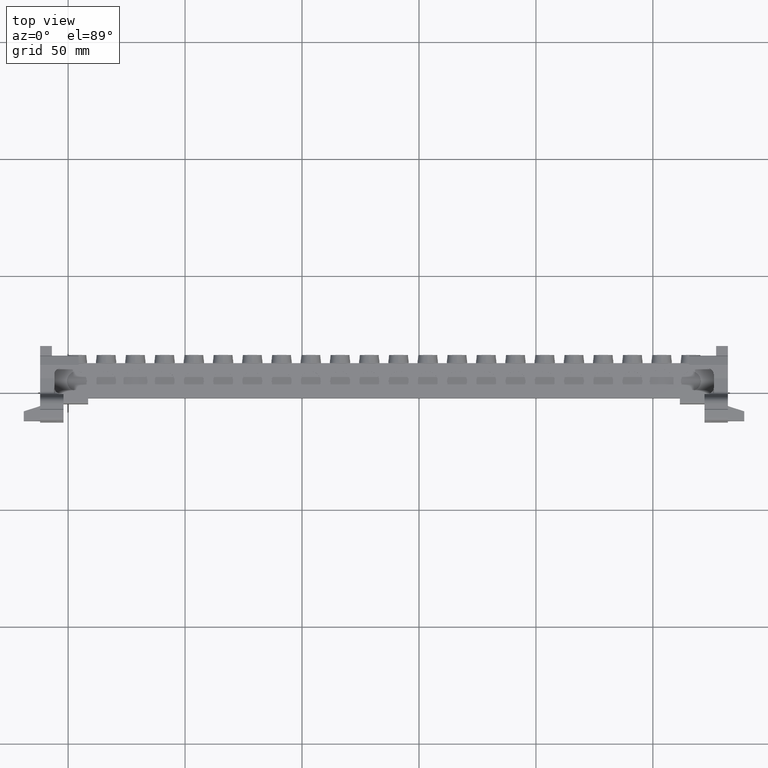
[diagram: clean part render]
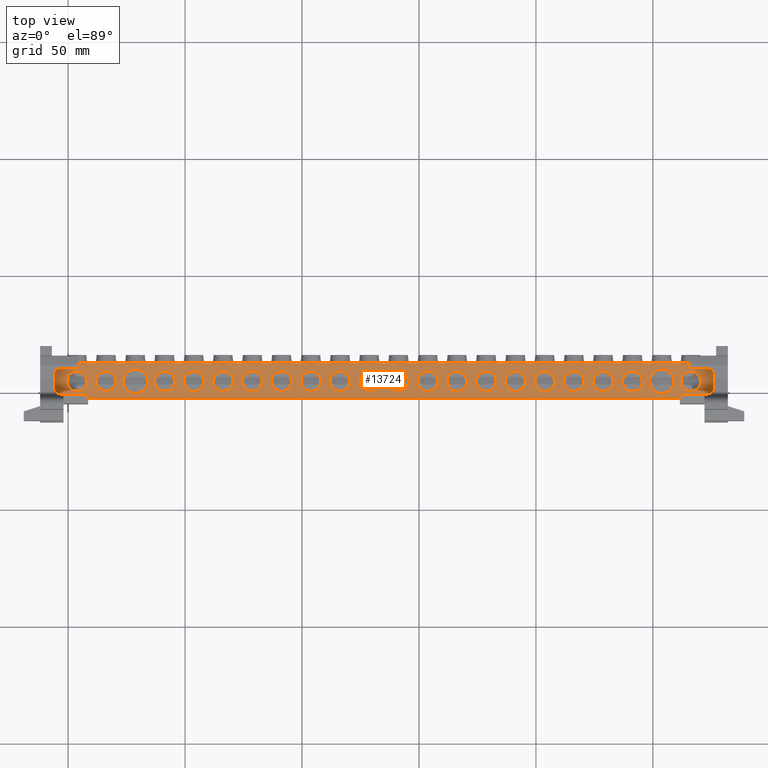
[diagram: same view with one face highlighted and labeled with its STEP entity id]
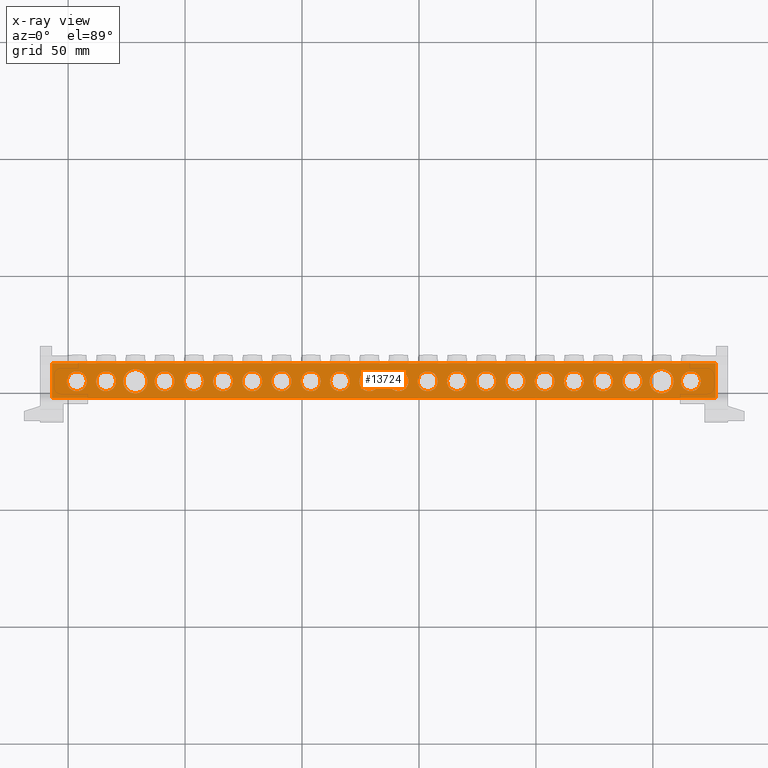
[diagram: x-ray of the same camera — body ghosted, the highlighted face saturated]
A machine part, top view. The second image highlights one B-rep face of the part: STEP entity #13724.
The next image is the same camera in x-ray: the body ghosted, the highlighted face saturated — about 0% of this face is hidden behind the body in this view.
In plain terms, the highlighted planar face has unit normal (0, 0, -1).
Its self-contained STEP definition (entity closure, byte-faithful):
#1021 = DIRECTION ( 'NONE',  ( 1.000000000000000000, 0.0000000000000000000, 0.0000000000000000000 ) ) ;
#1024 = CARTESIAN_POINT ( 'NONE',  ( 141.2473023041756900, 54.61882648292871800, 43.07764998369332000 ) ) ;
#1029 = DIRECTION ( 'NONE',  ( 0.0000000000000000000, 0.0000000000000000000, 1.000000000000000000 ) ) ;
#1037 = CARTESIAN_POINT ( 'NONE',  ( 153.7473023041757200, 54.61882648292871800, 43.07764998369332000 ) ) ;
#1051 = DIRECTION ( 'NONE',  ( 1.000000000000000000, 0.0000000000000000000, 0.0000000000000000000 ) ) ;
#1053 = DIRECTION ( 'NONE',  ( 0.0000000000000000000, 0.0000000000000000000, 1.000000000000000000 ) ) ;
#1062 = DIRECTION ( 'NONE',  ( 0.0000000000000000000, 0.0000000000000000000, 1.000000000000000000 ) ) ;
#1067 = DIRECTION ( 'NONE',  ( 0.0000000000000000000, 0.0000000000000000000, 1.000000000000000000 ) ) ;
#1069 = DIRECTION ( 'NONE',  ( 1.000000000000000000, 0.0000000000000000000, 0.0000000000000000000 ) ) ;
#1084 = DIRECTION ( 'NONE',  ( 1.000000000000000000, 0.0000000000000000000, 0.0000000000000000000 ) ) ;
#1092 = CARTESIAN_POINT ( 'NONE',  ( 41.24730230417573300, 54.61882648292871800, 43.07764998369332000 ) ) ;
#1093 = CARTESIAN_POINT ( 'NONE',  ( 166.2473023041757200, 54.61882648292871800, 43.07764998369332000 ) ) ;
#1099 = CARTESIAN_POINT ( 'NONE',  ( 216.2473023041757200, 54.61882648292871800, 43.07764998369332000 ) ) ;
#1102 = DIRECTION ( 'NONE',  ( 0.0000000000000000000, 0.0000000000000000000, 1.000000000000000000 ) ) ;
#1109 = CARTESIAN_POINT ( 'NONE',  ( 178.7473023041757500, 54.61882648292871800, 43.07764998369332000 ) ) ;
#1114 = DIRECTION ( 'NONE',  ( 0.0000000000000000000, 0.0000000000000000000, 1.000000000000000000 ) ) ;
#1115 = DIRECTION ( 'NONE',  ( 1.000000000000000000, 0.0000000000000000000, 0.0000000000000000000 ) ) ;
#1120 = CARTESIAN_POINT ( 'NONE',  ( -21.25269769582426700, 54.61882648292871800, 43.07764998369332000 ) ) ;
#1121 = DIRECTION ( 'NONE',  ( 0.0000000000000000000, 0.0000000000000000000, 1.000000000000000000 ) ) ;
#1125 = DIRECTION ( 'NONE',  ( 1.000000000000000000, 0.0000000000000000000, 0.0000000000000000000 ) ) ;
#1127 = DIRECTION ( 'NONE',  ( 0.0000000000000000000, 0.0000000000000000000, 1.000000000000000000 ) ) ;
#1135 = DIRECTION ( 'NONE',  ( 1.000000000000000000, 0.0000000000000000000, 0.0000000000000000000 ) ) ;
#1136 = DIRECTION ( 'NONE',  ( 1.000000000000000000, 0.0000000000000000000, 0.0000000000000000000 ) ) ;
#1140 = CARTESIAN_POINT ( 'NONE',  ( 78.74730230417573300, 54.61882648292871800, 43.07764998369332000 ) ) ;
#1196 = EDGE_CURVE ( 'NONE', #9308, #8395, #24999, .T. ) ;
#1217 = EDGE_CURVE ( 'NONE', #8267, #8390, #29342, .T. ) ;
#1225 = DIRECTION ( 'NONE',  ( 0.0000000000000000000, 0.0000000000000000000, 1.000000000000000000 ) ) ;
#1233 = EDGE_CURVE ( 'NONE', #8358, #8338, #21114, .T. ) ;
#1235 = CARTESIAN_POINT ( 'NONE',  ( 3.747302304175727200, 54.61882648292871800, 43.07764998369332000 ) ) ;
#1262 = DIRECTION ( 'NONE',  ( 1.000000000000000000, 0.0000000000000000000, 0.0000000000000000000 ) ) ;
#1272 = DIRECTION ( 'NONE',  ( 0.0000000000000000000, 0.0000000000000000000, 1.000000000000000000 ) ) ;
#1298 = CARTESIAN_POINT ( 'NONE',  ( -46.25269769582426000, 54.61882648292871800, 43.07764998369332000 ) ) ;
#1302 = DIRECTION ( 'NONE',  ( 1.000000000000000000, 0.0000000000000000000, 0.0000000000000000000 ) ) ;
#1320 = CARTESIAN_POINT ( 'NONE',  ( 103.7473023041757500, 54.61882648292871800, 43.07764998369332000 ) ) ;
#1326 = DIRECTION ( 'NONE',  ( 1.000000000000000000, 0.0000000000000000000, 0.0000000000000000000 ) ) ;
#1335 = DIRECTION ( 'NONE',  ( 0.0000000000000000000, 0.0000000000000000000, 1.000000000000000000 ) ) ;
#1371 = CARTESIAN_POINT ( 'NONE',  ( 203.7473023041756900, 54.61882648292871800, 43.07764998369332000 ) ) ;
#1375 = DIRECTION ( 'NONE',  ( 0.0000000000000000000, 0.0000000000000000000, 1.000000000000000000 ) ) ;
#1382 = DIRECTION ( 'NONE',  ( 1.000000000000000000, 0.0000000000000000000, 0.0000000000000000000 ) ) ;
#2567 = DIRECTION ( 'NONE',  ( 1.000000000000000000, 0.0000000000000000000, 0.0000000000000000000 ) ) ;
#2594 = DIRECTION ( 'NONE',  ( 0.0000000000000000000, 0.0000000000000000000, 1.000000000000000000 ) ) ;
#2595 = DIRECTION ( 'NONE',  ( 0.0000000000000000000, 0.0000000000000000000, 1.000000000000000000 ) ) ;
#2596 = CARTESIAN_POINT ( 'NONE',  ( 91.24730230417574700, 54.61882648292871800, 43.07764998369332000 ) ) ;
#2597 = DIRECTION ( 'NONE',  ( 1.000000000000000000, 0.0000000000000000000, 0.0000000000000000000 ) ) ;
#2600 = CARTESIAN_POINT ( 'NONE',  ( 28.74730230417573700, 54.61882648292871800, 43.07764998369332000 ) ) ;
#2616 = DIRECTION ( 'NONE',  ( 0.0000000000000000000, 0.0000000000000000000, 1.000000000000000000 ) ) ;
#2621 = DIRECTION ( 'NONE',  ( 1.000000000000000000, 0.0000000000000000000, 0.0000000000000000000 ) ) ;
#2629 = CARTESIAN_POINT ( 'NONE',  ( 16.24730230417572600, 54.61882648292871800, 43.07764998369332000 ) ) ;
#2631 = CARTESIAN_POINT ( 'NONE',  ( 53.74730230417573300, 54.61882648292871800, 43.07764998369332000 ) ) ;
#2638 = DIRECTION ( 'NONE',  ( 0.0000000000000000000, 0.0000000000000000000, 1.000000000000000000 ) ) ;
#2645 = DIRECTION ( 'NONE',  ( 1.000000000000000000, 0.0000000000000000000, 0.0000000000000000000 ) ) ;
#2650 = CARTESIAN_POINT ( 'NONE',  ( 191.2473023041756900, 54.61882648292871800, 43.07764998369332000 ) ) ;
#2656 = DIRECTION ( 'NONE',  ( 1.000000000000000000, 0.0000000000000000000, 0.0000000000000000000 ) ) ;
#2666 = DIRECTION ( 'NONE',  ( 0.0000000000000000000, 0.0000000000000000000, 1.000000000000000000 ) ) ;
#2667 = DIRECTION ( 'NONE',  ( 1.000000000000000000, 0.0000000000000000000, 0.0000000000000000000 ) ) ;
#2668 = DIRECTION ( 'NONE',  ( 0.0000000000000000000, 0.0000000000000000000, 1.000000000000000000 ) ) ;
#2669 = DIRECTION ( 'NONE',  ( 1.000000000000000000, 0.0000000000000000000, 0.0000000000000000000 ) ) ;
#2670 = CARTESIAN_POINT ( 'NONE',  ( 116.2473023041757300, 54.61882648292871800, 43.07764998369332000 ) ) ;
#2671 = CARTESIAN_POINT ( 'NONE',  ( 128.7473023041757200, 54.61882648292871800, 43.07764998369332000 ) ) ;
#2672 = DIRECTION ( 'NONE',  ( 0.0000000000000000000, 0.0000000000000000000, 1.000000000000000000 ) ) ;
#2676 = CARTESIAN_POINT ( 'NONE',  ( 66.24730230417571900, 54.61882648292871800, 43.07764998369332000 ) ) ;
#2677 = DIRECTION ( 'NONE',  ( 1.000000000000000000, 0.0000000000000000000, 0.0000000000000000000 ) ) ;
#2679 = DIRECTION ( 'NONE',  ( 0.0000000000000000000, 0.0000000000000000000, 1.000000000000000000 ) ) ;
#2757 = AXIS2_PLACEMENT_3D ( 'NONE', #2600, #2594, #2567 ) ;
#2772 = CIRCLE ( 'NONE', #2757, 4.250000000000003600 ) ;
#2780 = CIRCLE ( 'NONE', #2793, 4.250000000000003600 ) ;
#2793 = AXIS2_PLACEMENT_3D ( 'NONE', #2596, #2595, #2597 ) ;
#2798 = CIRCLE ( 'NONE', #2803, 4.250000000000003600 ) ;
#2803 = AXIS2_PLACEMENT_3D ( 'NONE', #2631, #2616, #2645 ) ;
#2815 = AXIS2_PLACEMENT_3D ( 'NONE', #2676, #2666, #2656 ) ;
#2828 = AXIS2_PLACEMENT_3D ( 'NONE', #2670, #2672, #2667 ) ;
#2831 = CIRCLE ( 'NONE', #2833, 4.250000000000003600 ) ;
#2832 = CIRCLE ( 'NONE', #2914, 4.250000000000003600 ) ;
#2833 = AXIS2_PLACEMENT_3D ( 'NONE', #1093, #1062, #1084 ) ;
#2837 = CIRCLE ( 'NONE', #2838, 4.250000000000003600 ) ;
#2838 = AXIS2_PLACEMENT_3D ( 'NONE', #2629, #2638, #2621 ) ;
#2842 = AXIS2_PLACEMENT_3D ( 'NONE', #1037, #1029, #1021 ) ;
#2846 = CIRCLE ( 'NONE', #2858, 4.250000000000003600 ) ;
#2847 = CIRCLE ( 'NONE', #2868, 4.250000000000003600 ) ;
#2849 = CIRCLE ( 'NONE', #2815, 4.249999999999990200 ) ;
#2850 = CIRCLE ( 'NONE', #2861, 4.250000000000003600 ) ;
#2856 = CIRCLE ( 'NONE', #2842, 4.250000000000003600 ) ;
#2858 = AXIS2_PLACEMENT_3D ( 'NONE', #1024, #1053, #1051 ) ;
#2861 = AXIS2_PLACEMENT_3D ( 'NONE', #2650, #2668, #2669 ) ;
#2865 = CIRCLE ( 'NONE', #2828, 4.250000000000003600 ) ;
#2868 = AXIS2_PLACEMENT_3D ( 'NONE', #2671, #2679, #2677 ) ;
#2877 = CIRCLE ( 'NONE', #2907, 4.250000000000003600 ) ;
#2886 = CIRCLE ( 'NONE', #2897, 4.250000000000003600 ) ;
#2891 = AXIS2_PLACEMENT_3D ( 'NONE', #1109, #1114, #1136 ) ;
#2896 = AXIS2_PLACEMENT_3D ( 'NONE', #1120, #1121, #1115 ) ;
#2897 = AXIS2_PLACEMENT_3D ( 'NONE', #1140, #1102, #1135 ) ;
#2902 = CIRCLE ( 'NONE', #2891, 4.250000000000003600 ) ;
#2907 = AXIS2_PLACEMENT_3D ( 'NONE', #1099, #1127, #1125 ) ;
#2914 = AXIS2_PLACEMENT_3D ( 'NONE', #1092, #1067, #1069 ) ;
#2935 = CIRCLE ( 'NONE', #2896, 5.150000000000002100 ) ;
#2937 = AXIS2_PLACEMENT_3D ( 'NONE', #1320, #1375, #1382 ) ;
#2940 = AXIS2_PLACEMENT_3D ( 'NONE', #1235, #1225, #1302 ) ;
#2945 = AXIS2_PLACEMENT_3D ( 'NONE', #1298, #1272, #1262 ) ;
#2946 = CIRCLE ( 'NONE', #2937, 4.250000000000003600 ) ;
#2957 = CIRCLE ( 'NONE', #2940, 4.250000000000005300 ) ;
#2959 = AXIS2_PLACEMENT_3D ( 'NONE', #1371, #1335, #1326 ) ;
#2962 = CIRCLE ( 'NONE', #2945, 4.249999999999996400 ) ;
#2965 = CIRCLE ( 'NONE', #2959, 5.150000000000015500 ) ;
#4004 = FACE_BOUND ( 'NONE', #19442, .T. ) ;
#4007 = FACE_BOUND ( 'NONE', #27348, .T. ) ;
#4009 = FACE_BOUND ( 'NONE', #29411, .T. ) ;
#4011 = FACE_BOUND ( 'NONE', #27345, .T. ) ;
#4012 = FACE_BOUND ( 'NONE', #27389, .T. ) ;
#4013 = FACE_BOUND ( 'NONE', #27373, .T. ) ;
#4015 = FACE_BOUND ( 'NONE', #24892, .T. ) ;
#4017 = FACE_BOUND ( 'NONE', #24784, .T. ) ;
#4018 = FACE_BOUND ( 'NONE', #24930, .T. ) ;
#4019 = FACE_BOUND ( 'NONE', #29408, .T. ) ;
#4020 = FACE_BOUND ( 'NONE', #24877, .T. ) ;
#4032 = FACE_BOUND ( 'NONE', #27347, .T. ) ;
#4033 = FACE_BOUND ( 'NONE', #27374, .T. ) ;
#4035 = FACE_BOUND ( 'NONE', #27343, .T. ) ;
#4040 = FACE_BOUND ( 'NONE', #27387, .T. ) ;
#4041 = FACE_BOUND ( 'NONE', #29412, .T. ) ;
#4042 = FACE_BOUND ( 'NONE', #27371, .T. ) ;
#4044 = FACE_BOUND ( 'NONE', #27386, .T. ) ;
#4045 = FACE_BOUND ( 'NONE', #24916, .T. ) ;
#4050 = FACE_BOUND ( 'NONE', #27390, .T. ) ;
#4052 = FACE_BOUND ( 'NONE', #29410, .T. ) ;
#4076 = FACE_BOUND ( 'NONE', #24931, .T. ) ;
#4080 = CARTESIAN_POINT ( 'NONE',  ( -56.95269769582426300, 62.41882648292872200, 43.07764998369332000 ) ) ;
#4081 = DIRECTION ( 'NONE',  ( 0.0000000000000000000, 0.0000000000000000000, -1.000000000000000000 ) ) ;
#4094 = PLANE ( 'NONE',  #27219 ) ;
#4096 = DIRECTION ( 'NONE',  ( -1.000000000000000000, 0.0000000000000000000, -0.0000000000000000000 ) ) ;
#4110 = FACE_OUTER_BOUND ( 'NONE', #24913, .T. ) ;
#6760 = EDGE_CURVE ( 'NONE', #9445, #9401, #2772, .T. ) ;
#6764 = EDGE_CURVE ( 'NONE', #8179, #8255, #2780, .T. ) ;
#6773 = EDGE_CURVE ( 'NONE', #9390, #9414, #2798, .T. ) ;
#6783 = EDGE_CURVE ( 'NONE', #8233, #8246, #2837, .T. ) ;
#6788 = EDGE_CURVE ( 'NONE', #8197, #9403, #2847, .T. ) ;
#6789 = EDGE_CURVE ( 'NONE', #9392, #8199, #2865, .T. ) ;
#6790 = EDGE_CURVE ( 'NONE', #9232, #9420, #2850, .T. ) ;
#6795 = EDGE_CURVE ( 'NONE', #9436, #8214, #2849, .T. ) ;
#6798 = EDGE_CURVE ( 'NONE', #8161, #8212, #2846, .T. ) ;
#6807 = EDGE_CURVE ( 'NONE', #8185, #8253, #2856, .T. ) ;
#6816 = EDGE_CURVE ( 'NONE', #8305, #9379, #2831, .T. ) ;
#6817 = EDGE_CURVE ( 'NONE', #9359, #8219, #2832, .T. ) ;
#6826 = EDGE_CURVE ( 'NONE', #8217, #9370, #2902, .T. ) ;
#6828 = EDGE_CURVE ( 'NONE', #8227, #8263, #2886, .T. ) ;
#6830 = EDGE_CURVE ( 'NONE', #8284, #8331, #2935, .T. ) ;
#6831 = EDGE_CURVE ( 'NONE', #8325, #8422, #2877, .T. ) ;
#6860 = EDGE_CURVE ( 'NONE', #8368, #8295, #2962, .T. ) ;
#6862 = EDGE_CURVE ( 'NONE', #8361, #8307, #2957, .T. ) ;
#6866 = EDGE_CURVE ( 'NONE', #8203, #8261, #2946, .T. ) ;
#6875 = EDGE_CURVE ( 'NONE', #8282, #8335, #2965, .T. ) ;
#7010 = EDGE_CURVE ( 'NONE', #8263, #8227, #17188, .T. ) ;
#7012 = EDGE_CURVE ( 'NONE', #9379, #8305, #17222, .T. ) ;
#7013 = EDGE_CURVE ( 'NONE', #8199, #9392, #17235, .T. ) ;
#7022 = EDGE_CURVE ( 'NONE', #9403, #8197, #17190, .T. ) ;
#7026 = EDGE_CURVE ( 'NONE', #8331, #8284, #17283, .T. ) ;
#7031 = EDGE_CURVE ( 'NONE', #9420, #9232, #17252, .T. ) ;
#7044 = EDGE_CURVE ( 'NONE', #16409, #9308, #11606, .T. ) ;
#7053 = EDGE_CURVE ( 'NONE', #9370, #8217, #17303, .T. ) ;
#7054 = EDGE_CURVE ( 'NONE', #8338, #8358, #17294, .T. ) ;
#7061 = EDGE_CURVE ( 'NONE', #8214, #9436, #17253, .T. ) ;
#7064 = EDGE_CURVE ( 'NONE', #16356, #16433, #11767, .T. ) ;
#7073 = EDGE_CURVE ( 'NONE', #8261, #8203, #17337, .T. ) ;
#7077 = EDGE_CURVE ( 'NONE', #8219, #9359, #17364, .T. ) ;
#7079 = EDGE_CURVE ( 'NONE', #9401, #9445, #17354, .T. ) ;
#7080 = EDGE_CURVE ( 'NONE', #8410, #16409, #11925, .T. ) ;
#7090 = EDGE_CURVE ( 'NONE', #8212, #8161, #17334, .T. ) ;
#7104 = EDGE_CURVE ( 'NONE', #8307, #8361, #17344, .T. ) ;
#7111 = EDGE_CURVE ( 'NONE', #8390, #8267, #17351, .T. ) ;
#7115 = EDGE_CURVE ( 'NONE', #8295, #8368, #17413, .T. ) ;
#7116 = EDGE_CURVE ( 'NONE', #9414, #9390, #17379, .T. ) ;
#7119 = EDGE_CURVE ( 'NONE', #8253, #8185, #17382, .T. ) ;
#7121 = EDGE_CURVE ( 'NONE', #8255, #8179, #17423, .T. ) ;
#7125 = EDGE_CURVE ( 'NONE', #8335, #8282, #17407, .T. ) ;
#7131 = EDGE_CURVE ( 'NONE', #16362, #8395, #10815, .T. ) ;
#7132 = EDGE_CURVE ( 'NONE', #8246, #8233, #17415, .T. ) ;
#7133 = EDGE_CURVE ( 'NONE', #16433, #16439, #10821, .T. ) ;
#7134 = EDGE_CURVE ( 'NONE', #8422, #8325, #17434, .T. ) ;
#7447 = EDGE_CURVE ( 'NONE', #16439, #8410, #26017, .T. ) ;
#7460 = EDGE_CURVE ( 'NONE', #16362, #16356, #26074, .T. ) ;
#8161 = VERTEX_POINT ( 'NONE', #18374 ) ;
#8179 = VERTEX_POINT ( 'NONE', #18402 ) ;
#8185 = VERTEX_POINT ( 'NONE', #18412 ) ;
#8197 = VERTEX_POINT ( 'NONE', #18421 ) ;
#8199 = VERTEX_POINT ( 'NONE', #18401 ) ;
#8203 = VERTEX_POINT ( 'NONE', #18430 ) ;
#8212 = VERTEX_POINT ( 'NONE', #18441 ) ;
#8214 = VERTEX_POINT ( 'NONE', #18428 ) ;
#8217 = VERTEX_POINT ( 'NONE', #18399 ) ;
#8219 = VERTEX_POINT ( 'NONE', #18413 ) ;
#8227 = VERTEX_POINT ( 'NONE', #18415 ) ;
#8233 = VERTEX_POINT ( 'NONE', #18436 ) ;
#8246 = VERTEX_POINT ( 'NONE', #18432 ) ;
#8253 = VERTEX_POINT ( 'NONE', #18406 ) ;
#8255 = VERTEX_POINT ( 'NONE', #18423 ) ;
#8261 = VERTEX_POINT ( 'NONE', #18427 ) ;
#8263 = VERTEX_POINT ( 'NONE', #18418 ) ;
#8267 = VERTEX_POINT ( 'NONE', #18417 ) ;
#8282 = VERTEX_POINT ( 'NONE', #18398 ) ;
#8284 = VERTEX_POINT ( 'NONE', #18400 ) ;
#8295 = VERTEX_POINT ( 'NONE', #18389 ) ;
#8305 = VERTEX_POINT ( 'NONE', #18437 ) ;
#8307 = VERTEX_POINT ( 'NONE', #18409 ) ;
#8325 = VERTEX_POINT ( 'NONE', #18391 ) ;
#8331 = VERTEX_POINT ( 'NONE', #18407 ) ;
#8335 = VERTEX_POINT ( 'NONE', #18439 ) ;
#8338 = VERTEX_POINT ( 'NONE', #18411 ) ;
#8358 = VERTEX_POINT ( 'NONE', #18385 ) ;
#8361 = VERTEX_POINT ( 'NONE', #18483 ) ;
#8368 = VERTEX_POINT ( 'NONE', #18464 ) ;
#8390 = VERTEX_POINT ( 'NONE', #18453 ) ;
#8395 = VERTEX_POINT ( 'NONE', #18468 ) ;
#8410 = VERTEX_POINT ( 'NONE', #18510 ) ;
#8422 = VERTEX_POINT ( 'NONE', #18494 ) ;
#9232 = VERTEX_POINT ( 'NONE', #18643 ) ;
#9308 = VERTEX_POINT ( 'NONE', #18650 ) ;
#9359 = VERTEX_POINT ( 'NONE', #18731 ) ;
#9370 = VERTEX_POINT ( 'NONE', #18750 ) ;
#9379 = VERTEX_POINT ( 'NONE', #18751 ) ;
#9390 = VERTEX_POINT ( 'NONE', #18718 ) ;
#9392 = VERTEX_POINT ( 'NONE', #18738 ) ;
#9401 = VERTEX_POINT ( 'NONE', #18797 ) ;
#9403 = VERTEX_POINT ( 'NONE', #18788 ) ;
#9414 = VERTEX_POINT ( 'NONE', #18755 ) ;
#9420 = VERTEX_POINT ( 'NONE', #18787 ) ;
#9436 = VERTEX_POINT ( 'NONE', #18772 ) ;
#9445 = VERTEX_POINT ( 'NONE', #18825 ) ;
#9570 = CARTESIAN_POINT ( 'NONE',  ( 226.9473023041757100, 47.41882648292872200, 43.07764998369332000 ) ) ;
#9612 = CARTESIAN_POINT ( 'NONE',  ( 226.9473023041757100, 62.41882648292872200, 43.07764998369332000 ) ) ;
#9647 = CARTESIAN_POINT ( 'NONE',  ( -56.95269769582426300, 47.41882648292872200, 43.07764998369332000 ) ) ;
#9680 = CARTESIAN_POINT ( 'NONE',  ( -56.95269769582426300, 62.41882648292872200, 43.07764998369332000 ) ) ;
#9719 = CARTESIAN_POINT ( 'NONE',  ( -56.95269769582426300, 61.91882648293060500, 43.07764998369332000 ) ) ;
#10726 = DIRECTION ( 'NONE',  ( 0.0000000000000000000, 0.0000000000000000000, 1.000000000000000000 ) ) ;
#10732 = DIRECTION ( 'NONE',  ( 1.000000000000000000, 0.0000000000000000000, 0.0000000000000000000 ) ) ;
#10740 = CARTESIAN_POINT ( 'NONE',  ( 3.747302304175727200, 54.61882648292871800, 43.07764998369332000 ) ) ;
#10765 = DIRECTION ( 'NONE',  ( 0.0000000000000000000, 0.0000000000000000000, 1.000000000000000000 ) ) ;
#10769 = DIRECTION ( 'NONE',  ( 0.0000000000000000000, 0.0000000000000000000, 1.000000000000000000 ) ) ;
#10770 = DIRECTION ( 'NONE',  ( 1.000000000000000000, 0.0000000000000000000, 0.0000000000000000000 ) ) ;
#10775 = DIRECTION ( 'NONE',  ( 1.000000000000000000, 0.0000000000000000000, 0.0000000000000000000 ) ) ;
#10779 = DIRECTION ( 'NONE',  ( 1.000000000000000000, 0.0000000000000000000, 0.0000000000000000000 ) ) ;
#10781 = DIRECTION ( 'NONE',  ( 0.0000000000000000000, 0.0000000000000000000, 1.000000000000000000 ) ) ;
#10789 = DIRECTION ( 'NONE',  ( 1.000000000000000000, 0.0000000000000000000, 0.0000000000000000000 ) ) ;
#10790 = DIRECTION ( 'NONE',  ( 0.0000000000000000000, 0.0000000000000000000, 1.000000000000000000 ) ) ;
#10792 = CARTESIAN_POINT ( 'NONE',  ( 53.74730230417573300, 54.61882648292871800, 43.07764998369332000 ) ) ;
#10793 = DIRECTION ( 'NONE',  ( 1.000000000000000000, 0.0000000000000000000, 0.0000000000000000000 ) ) ;
#10794 = CARTESIAN_POINT ( 'NONE',  ( 153.7473023041757200, 54.61882648292871800, 43.07764998369332000 ) ) ;
#10795 = CARTESIAN_POINT ( 'NONE',  ( 91.24730230417574700, 54.61882648292871800, 43.07764998369332000 ) ) ;
#10800 = CARTESIAN_POINT ( 'NONE',  ( -46.25269769582426000, 54.61882648292871800, 43.07764998369332000 ) ) ;
#10801 = DIRECTION ( 'NONE',  ( 0.0000000000000000000, 0.0000000000000000000, 1.000000000000000000 ) ) ;
#10804 = CARTESIAN_POINT ( 'NONE',  ( -33.75269769582426700, 54.61882648292871800, 43.07764998369332000 ) ) ;
#10809 = DIRECTION ( 'NONE',  ( 1.000000000000000000, 0.0000000000000000000, 0.0000000000000000000 ) ) ;
#10815 = LINE ( 'NONE', #10833, #17411 ) ;
#10819 = DIRECTION ( 'NONE',  ( 0.0000000000000000000, 0.0000000000000000000, 1.000000000000000000 ) ) ;
#10821 = LINE ( 'NONE', #10847, #17396 ) ;
#10822 = DIRECTION ( 'NONE',  ( -0.0000000000000000000, -1.000000000000000000, -0.0000000000000000000 ) ) ;
#10823 = DIRECTION ( 'NONE',  ( 1.000000000000000000, 0.0000000000000000000, 0.0000000000000000000 ) ) ;
#10825 = DIRECTION ( 'NONE',  ( 1.000000000000000000, 0.0000000000000000000, 0.0000000000000000000 ) ) ;
#10828 = CARTESIAN_POINT ( 'NONE',  ( 203.7473023041756900, 54.61882648292871800, 43.07764998369332000 ) ) ;
#10833 = CARTESIAN_POINT ( 'NONE',  ( -56.95269769582424900, 47.41882648292912700, 43.07764998369332000 ) ) ;
#10836 = CARTESIAN_POINT ( 'NONE',  ( 16.24730230417572600, 54.61882648292871800, 43.07764998369332000 ) ) ;
#10837 = DIRECTION ( 'NONE',  ( 0.0000000000000000000, 0.0000000000000000000, 1.000000000000000000 ) ) ;
#10840 = DIRECTION ( 'NONE',  ( 0.0000000000000000000, 0.0000000000000000000, 1.000000000000000000 ) ) ;
#10841 = CARTESIAN_POINT ( 'NONE',  ( 216.2473023041757200, 54.61882648292871800, 43.07764998369332000 ) ) ;
#10846 = DIRECTION ( 'NONE',  ( -1.000000000000000000, -1.017900180445811500E-015, 0.0000000000000000000 ) ) ;
#10847 = CARTESIAN_POINT ( 'NONE',  ( -56.95269769582426300, 47.41882648292872200, 43.07764998369332000 ) ) ;
#11403 = CARTESIAN_POINT ( 'NONE',  ( 78.74730230417573300, 54.61882648292871800, 43.07764998369332000 ) ) ;
#11410 = DIRECTION ( 'NONE',  ( 0.0000000000000000000, 0.0000000000000000000, 1.000000000000000000 ) ) ;
#11439 = DIRECTION ( 'NONE',  ( 1.000000000000000000, 0.0000000000000000000, 0.0000000000000000000 ) ) ;
#11460 = DIRECTION ( 'NONE',  ( 0.0000000000000000000, 0.0000000000000000000, 1.000000000000000000 ) ) ;
#11462 = DIRECTION ( 'NONE',  ( 1.000000000000000000, 0.0000000000000000000, 0.0000000000000000000 ) ) ;
#11470 = CARTESIAN_POINT ( 'NONE',  ( 116.2473023041757300, 54.61882648292871800, 43.07764998369332000 ) ) ;
#11479 = CARTESIAN_POINT ( 'NONE',  ( 128.7473023041757200, 54.61882648292871800, 43.07764998369332000 ) ) ;
#11482 = DIRECTION ( 'NONE',  ( 1.000000000000000000, 0.0000000000000000000, 0.0000000000000000000 ) ) ;
#11488 = DIRECTION ( 'NONE',  ( 0.0000000000000000000, 0.0000000000000000000, 1.000000000000000000 ) ) ;
#11489 = DIRECTION ( 'NONE',  ( 0.0000000000000000000, 0.0000000000000000000, 1.000000000000000000 ) ) ;
#11490 = DIRECTION ( 'NONE',  ( 1.000000000000000000, 0.0000000000000000000, 0.0000000000000000000 ) ) ;
#11492 = CARTESIAN_POINT ( 'NONE',  ( 166.2473023041757200, 54.61882648292871800, 43.07764998369332000 ) ) ;
#11501 = CARTESIAN_POINT ( 'NONE',  ( 191.2473023041756900, 54.61882648292871800, 43.07764998369332000 ) ) ;
#11506 = DIRECTION ( 'NONE',  ( 1.000000000000000000, 0.0000000000000000000, 0.0000000000000000000 ) ) ;
#11524 = DIRECTION ( 'NONE',  ( 0.0000000000000000000, 0.0000000000000000000, 1.000000000000000000 ) ) ;
#11529 = CARTESIAN_POINT ( 'NONE',  ( -21.25269769582426700, 54.61882648292871800, 43.07764998369332000 ) ) ;
#11531 = DIRECTION ( 'NONE',  ( 1.000000000000000000, 0.0000000000000000000, 0.0000000000000000000 ) ) ;
#11544 = DIRECTION ( 'NONE',  ( 0.0000000000000000000, 0.0000000000000000000, 1.000000000000000000 ) ) ;
#11606 = LINE ( 'NONE', #11619, #17290 ) ;
#11619 = CARTESIAN_POINT ( 'NONE',  ( -56.95269769582426300, 47.41882648292872200, 43.07764998369332000 ) ) ;
#11623 = DIRECTION ( 'NONE',  ( 1.000000000000000000, 0.0000000000000000000, 0.0000000000000000000 ) ) ;
#11659 = DIRECTION ( 'NONE',  ( 0.0000000000000000000, 0.0000000000000000000, 1.000000000000000000 ) ) ;
#11692 = CARTESIAN_POINT ( 'NONE',  ( 178.7473023041757500, 54.61882648292871800, 43.07764998369332000 ) ) ;
#11697 = DIRECTION ( 'NONE',  ( 1.000000000000000000, 0.0000000000000000000, 0.0000000000000000000 ) ) ;
#11707 = CARTESIAN_POINT ( 'NONE',  ( -8.752697695824270600, 54.61882648292871800, 43.07764998369332000 ) ) ;
#11710 = DIRECTION ( 'NONE',  ( 0.0000000000000000000, 0.0000000000000000000, 1.000000000000000000 ) ) ;
#11749 = DIRECTION ( 'NONE',  ( 1.000000000000000000, 0.0000000000000000000, 0.0000000000000000000 ) ) ;
#11758 = CARTESIAN_POINT ( 'NONE',  ( 66.24730230417571900, 54.61882648292871800, 43.07764998369332000 ) ) ;
#11767 = LINE ( 'NONE', #11845, #17286 ) ;
#11824 = DIRECTION ( 'NONE',  ( 0.0000000000000000000, 0.0000000000000000000, 1.000000000000000000 ) ) ;
#11836 = DIRECTION ( 'NONE',  ( 1.000000000000000000, 0.0000000000000000000, 0.0000000000000000000 ) ) ;
#11845 = CARTESIAN_POINT ( 'NONE',  ( -56.95269769582426300, 62.41882648292872200, 43.07764998369332000 ) ) ;
#11848 = DIRECTION ( 'NONE',  ( -1.000000000000000000, -0.0000000000000000000, -0.0000000000000000000 ) ) ;
#11863 = DIRECTION ( 'NONE',  ( 0.0000000000000000000, 0.0000000000000000000, 1.000000000000000000 ) ) ;
#11865 = CARTESIAN_POINT ( 'NONE',  ( -56.95269769582397900, 62.41882648292872200, 43.07764998369332000 ) ) ;
#11866 = DIRECTION ( 'NONE',  ( 1.000000000000000000, 0.0000000000000000000, 0.0000000000000000000 ) ) ;
#11868 = DIRECTION ( 'NONE',  ( -7.897574987183420400E-015, -1.000000000000000000, 0.0000000000000000000 ) ) ;
#11886 = CARTESIAN_POINT ( 'NONE',  ( 103.7473023041757500, 54.61882648292871800, 43.07764998369332000 ) ) ;
#11894 = CARTESIAN_POINT ( 'NONE',  ( 28.74730230417573700, 54.61882648292871800, 43.07764998369332000 ) ) ;
#11896 = DIRECTION ( 'NONE',  ( 1.000000000000000000, 0.0000000000000000000, 0.0000000000000000000 ) ) ;
#11898 = DIRECTION ( 'NONE',  ( 1.000000000000000000, 0.0000000000000000000, 0.0000000000000000000 ) ) ;
#11912 = CARTESIAN_POINT ( 'NONE',  ( 41.24730230417573300, 54.61882648292871800, 43.07764998369332000 ) ) ;
#11925 = LINE ( 'NONE', #11865, #17325 ) ;
#11931 = DIRECTION ( 'NONE',  ( 0.0000000000000000000, 0.0000000000000000000, 1.000000000000000000 ) ) ;
#11935 = DIRECTION ( 'NONE',  ( 0.0000000000000000000, 0.0000000000000000000, 1.000000000000000000 ) ) ;
#11949 = DIRECTION ( 'NONE',  ( 0.0000000000000000000, 0.0000000000000000000, 1.000000000000000000 ) ) ;
#11998 = CARTESIAN_POINT ( 'NONE',  ( 141.2473023041756900, 54.61882648292871800, 43.07764998369332000 ) ) ;
#12032 = DIRECTION ( 'NONE',  ( 1.000000000000000000, 0.0000000000000000000, 0.0000000000000000000 ) ) ;
#13422 = VECTOR ( 'NONE', #26057, 1000.000000000000000 ) ;
#13653 = VECTOR ( 'NONE', #26022, 1000.000000000000000 ) ;
#13724 = ADVANCED_FACE ( 'NONE', ( #4032, #4033, #4040, #4019, #4044, #4042, #4035, #4041, #4007, #4052, #4011, #4013, #4004, #4050, #4009, #4012, #4045, #4015, #4017, #4018, #4020, #4076, #4110 ), #4094, .F. ) ;
#16356 = VERTEX_POINT ( 'NONE', #9612 ) ;
#16362 = VERTEX_POINT ( 'NONE', #9570 ) ;
#16409 = VERTEX_POINT ( 'NONE', #9647 ) ;
#16433 = VERTEX_POINT ( 'NONE', #9680 ) ;
#16439 = VERTEX_POINT ( 'NONE', #9719 ) ;
#17188 = CIRCLE ( 'NONE', #17189, 4.250000000000003600 ) ;
#17189 = AXIS2_PLACEMENT_3D ( 'NONE', #11403, #11410, #11439 ) ;
#17190 = CIRCLE ( 'NONE', #17194, 4.250000000000003600 ) ;
#17194 = AXIS2_PLACEMENT_3D ( 'NONE', #11479, #11489, #11490 ) ;
#17204 = AXIS2_PLACEMENT_3D ( 'NONE', #11470, #11488, #11482 ) ;
#17222 = CIRCLE ( 'NONE', #17226, 4.250000000000003600 ) ;
#17226 = AXIS2_PLACEMENT_3D ( 'NONE', #11492, #11460, #11462 ) ;
#17235 = CIRCLE ( 'NONE', #17204, 4.250000000000003600 ) ;
#17252 = CIRCLE ( 'NONE', #17278, 4.250000000000003600 ) ;
#17253 = CIRCLE ( 'NONE', #17267, 4.249999999999990200 ) ;
#17261 = AXIS2_PLACEMENT_3D ( 'NONE', #11692, #11710, #11749 ) ;
#17267 = AXIS2_PLACEMENT_3D ( 'NONE', #11758, #11824, #11836 ) ;
#17271 = AXIS2_PLACEMENT_3D ( 'NONE', #11529, #11524, #11531 ) ;
#17278 = AXIS2_PLACEMENT_3D ( 'NONE', #11501, #11544, #11506 ) ;
#17283 = CIRCLE ( 'NONE', #17271, 5.150000000000002100 ) ;
#17286 = VECTOR ( 'NONE', #11848, 1000.000000000000000 ) ;
#17290 = VECTOR ( 'NONE', #11623, 1000.000000000000000 ) ;
#17294 = CIRCLE ( 'NONE', #17296, 4.250000000000005300 ) ;
#17296 = AXIS2_PLACEMENT_3D ( 'NONE', #11707, #11659, #11697 ) ;
#17303 = CIRCLE ( 'NONE', #17261, 4.250000000000003600 ) ;
#17313 = AXIS2_PLACEMENT_3D ( 'NONE', #10740, #10726, #10732 ) ;
#17319 = AXIS2_PLACEMENT_3D ( 'NONE', #11912, #11863, #11866 ) ;
#17322 = AXIS2_PLACEMENT_3D ( 'NONE', #11998, #11949, #12032 ) ;
#17325 = VECTOR ( 'NONE', #11868, 1000.000000000000000 ) ;
#17334 = CIRCLE ( 'NONE', #17322, 4.250000000000003600 ) ;
#17337 = CIRCLE ( 'NONE', #17369, 4.250000000000003600 ) ;
#17344 = CIRCLE ( 'NONE', #17313, 4.250000000000005300 ) ;
#17351 = CIRCLE ( 'NONE', #17356, 4.250000000000003600 ) ;
#17354 = CIRCLE ( 'NONE', #17361, 4.250000000000003600 ) ;
#17356 = AXIS2_PLACEMENT_3D ( 'NONE', #10804, #10765, #10793 ) ;
#17361 = AXIS2_PLACEMENT_3D ( 'NONE', #11894, #11935, #11898 ) ;
#17364 = CIRCLE ( 'NONE', #17319, 4.250000000000003600 ) ;
#17369 = AXIS2_PLACEMENT_3D ( 'NONE', #11886, #11931, #11896 ) ;
#17379 = CIRCLE ( 'NONE', #17422, 4.250000000000003600 ) ;
#17382 = CIRCLE ( 'NONE', #17427, 4.250000000000003600 ) ;
#17396 = VECTOR ( 'NONE', #10822, 1000.000000000000000 ) ;
#17407 = CIRCLE ( 'NONE', #17439, 5.150000000000015500 ) ;
#17408 = AXIS2_PLACEMENT_3D ( 'NONE', #10841, #10837, #10823 ) ;
#17411 = VECTOR ( 'NONE', #10846, 1000.000000000000000 ) ;
#17413 = CIRCLE ( 'NONE', #17438, 4.249999999999996400 ) ;
#17415 = CIRCLE ( 'NONE', #17429, 4.250000000000003600 ) ;
#17418 = AXIS2_PLACEMENT_3D ( 'NONE', #10795, #10769, #10770 ) ;
#17422 = AXIS2_PLACEMENT_3D ( 'NONE', #10792, #10801, #10779 ) ;
#17423 = CIRCLE ( 'NONE', #17418, 4.250000000000003600 ) ;
#17427 = AXIS2_PLACEMENT_3D ( 'NONE', #10794, #10781, #10775 ) ;
#17429 = AXIS2_PLACEMENT_3D ( 'NONE', #10836, #10840, #10809 ) ;
#17434 = CIRCLE ( 'NONE', #17408, 4.250000000000003600 ) ;
#17438 = AXIS2_PLACEMENT_3D ( 'NONE', #10800, #10790, #10789 ) ;
#17439 = AXIS2_PLACEMENT_3D ( 'NONE', #10828, #10819, #10825 ) ;
#18374 = CARTESIAN_POINT ( 'NONE',  ( 136.9973023041756900, 54.61882648292871800, 43.07764998369332000 ) ) ;
#18385 = CARTESIAN_POINT ( 'NONE',  ( -13.00269769582427600, 54.61882648292871800, 43.07764998369332000 ) ) ;
#18389 = CARTESIAN_POINT ( 'NONE',  ( -42.00269769582426700, 54.61882648292871800, 43.07764998369332000 ) ) ;
#18391 = CARTESIAN_POINT ( 'NONE',  ( 211.9973023041757200, 54.61882648292871800, 43.07764998369332000 ) ) ;
#18398 = CARTESIAN_POINT ( 'NONE',  ( 198.5973023041756800, 54.61882648292871800, 43.07764998369332000 ) ) ;
#18399 = CARTESIAN_POINT ( 'NONE',  ( 174.4973023041757500, 54.61882648292871800, 43.07764998369332000 ) ) ;
#18400 = CARTESIAN_POINT ( 'NONE',  ( -26.40269769582426900, 54.61882648292871800, 43.07764998369332000 ) ) ;
#18401 = CARTESIAN_POINT ( 'NONE',  ( 120.4973023041757500, 54.61882648292871800, 43.07764998369332000 ) ) ;
#18402 = CARTESIAN_POINT ( 'NONE',  ( 86.99730230417573300, 54.61882648292871800, 43.07764998369332000 ) ) ;
#18406 = CARTESIAN_POINT ( 'NONE',  ( 157.9973023041757200, 54.61882648292871800, 43.07764998369332000 ) ) ;
#18407 = CARTESIAN_POINT ( 'NONE',  ( -16.10269769582426500, 54.61882648292871800, 43.07764998369332000 ) ) ;
#18409 = CARTESIAN_POINT ( 'NONE',  ( 7.997302304175733000, 54.61882648292871800, 43.07764998369332000 ) ) ;
#18411 = CARTESIAN_POINT ( 'NONE',  ( -4.502697695824264400, 54.61882648292871800, 43.07764998369332000 ) ) ;
#18412 = CARTESIAN_POINT ( 'NONE',  ( 149.4973023041757200, 54.61882648292871800, 43.07764998369332000 ) ) ;
#18413 = CARTESIAN_POINT ( 'NONE',  ( 45.49730230417574000, 54.61882648292871800, 43.07764998369332000 ) ) ;
#18415 = CARTESIAN_POINT ( 'NONE',  ( 74.49730230417573300, 54.61882648292871800, 43.07764998369332000 ) ) ;
#18417 = CARTESIAN_POINT ( 'NONE',  ( -38.00269769582426700, 54.61882648292871800, 43.07764998369332000 ) ) ;
#18418 = CARTESIAN_POINT ( 'NONE',  ( 82.99730230417573300, 54.61882648292871800, 43.07764998369332000 ) ) ;
#18421 = CARTESIAN_POINT ( 'NONE',  ( 124.4973023041757200, 54.61882648292871800, 43.07764998369332000 ) ) ;
#18423 = CARTESIAN_POINT ( 'NONE',  ( 95.49730230417574700, 54.61882648292871800, 43.07764998369332000 ) ) ;
#18427 = CARTESIAN_POINT ( 'NONE',  ( 107.9973023041757600, 54.61882648292871800, 43.07764998369332000 ) ) ;
#18428 = CARTESIAN_POINT ( 'NONE',  ( 70.49730230417570500, 54.61882648292871800, 43.07764998369332000 ) ) ;
#18430 = CARTESIAN_POINT ( 'NONE',  ( 99.49730230417574700, 54.61882648292871800, 43.07764998369332000 ) ) ;
#18432 = CARTESIAN_POINT ( 'NONE',  ( 20.49730230417572900, 54.61882648292871800, 43.07764998369332000 ) ) ;
#18436 = CARTESIAN_POINT ( 'NONE',  ( 11.99730230417571900, 54.61882648292871800, 43.07764998369332000 ) ) ;
#18437 = CARTESIAN_POINT ( 'NONE',  ( 161.9973023041757200, 54.61882648292871800, 43.07764998369332000 ) ) ;
#18439 = CARTESIAN_POINT ( 'NONE',  ( 208.8973023041757200, 54.61882648292871800, 43.07764998369332000 ) ) ;
#18441 = CARTESIAN_POINT ( 'NONE',  ( 145.4973023041757200, 54.61882648292871800, 43.07764998369332000 ) ) ;
#18453 = CARTESIAN_POINT ( 'NONE',  ( -29.50269769582426000, 54.61882648292871800, 43.07764998369332000 ) ) ;
#18464 = CARTESIAN_POINT ( 'NONE',  ( -50.50269769582426000, 54.61882648292871800, 43.07764998369332000 ) ) ;
#18468 = CARTESIAN_POINT ( 'NONE',  ( 219.1473023041759200, 47.41882648292872200, 43.07764998369332000 ) ) ;
#18483 = CARTESIAN_POINT ( 'NONE',  ( -0.5026976958242782600, 54.61882648292871800, 43.07764998369332000 ) ) ;
#18494 = CARTESIAN_POINT ( 'NONE',  ( 220.4973023041757200, 54.61882648292871800, 43.07764998369332000 ) ) ;
#18510 = CARTESIAN_POINT ( 'NONE',  ( -56.95269769582426300, 56.91882648293359600, 43.07764998369332000 ) ) ;
#18643 = CARTESIAN_POINT ( 'NONE',  ( 186.9973023041756900, 54.61882648292871800, 43.07764998369332000 ) ) ;
#18650 = CARTESIAN_POINT ( 'NONE',  ( -49.05269769582425000, 47.41882648292872200, 43.07764998369332000 ) ) ;
#18718 = CARTESIAN_POINT ( 'NONE',  ( 49.49730230417572600, 54.61882648292871800, 43.07764998369332000 ) ) ;
#18731 = CARTESIAN_POINT ( 'NONE',  ( 36.99730230417572600, 54.61882648292871800, 43.07764998369332000 ) ) ;
#18738 = CARTESIAN_POINT ( 'NONE',  ( 111.9973023041757300, 54.61882648292871800, 43.07764998369332000 ) ) ;
#18750 = CARTESIAN_POINT ( 'NONE',  ( 182.9973023041757500, 54.61882648292871800, 43.07764998369332000 ) ) ;
#18751 = CARTESIAN_POINT ( 'NONE',  ( 170.4973023041757200, 54.61882648292871800, 43.07764998369332000 ) ) ;
#18755 = CARTESIAN_POINT ( 'NONE',  ( 57.99730230417573300, 54.61882648292871800, 43.07764998369332000 ) ) ;
#18772 = CARTESIAN_POINT ( 'NONE',  ( 61.99730230417573300, 54.61882648292871800, 43.07764998369332000 ) ) ;
#18787 = CARTESIAN_POINT ( 'NONE',  ( 195.4973023041756900, 54.61882648292871800, 43.07764998369332000 ) ) ;
#18788 = CARTESIAN_POINT ( 'NONE',  ( 132.9973023041757200, 54.61882648292871800, 43.07764998369332000 ) ) ;
#18797 = CARTESIAN_POINT ( 'NONE',  ( 32.99730230417574000, 54.61882648292871800, 43.07764998369332000 ) ) ;
#18825 = CARTESIAN_POINT ( 'NONE',  ( 24.49730230417573300, 54.61882648292871800, 43.07764998369332000 ) ) ;
#19442 = EDGE_LOOP ( 'NONE', ( #28274, #28304 ) ) ;
#21100 = AXIS2_PLACEMENT_3D ( 'NONE', #25033, #25043, #25035 ) ;
#21114 = CIRCLE ( 'NONE', #21100, 4.250000000000005300 ) ;
#24784 = EDGE_LOOP ( 'NONE', ( #28391, #28362 ) ) ;
#24877 = EDGE_LOOP ( 'NONE', ( #28381, #28382 ) ) ;
#24892 = EDGE_LOOP ( 'NONE', ( #28316, #28344 ) ) ;
#24913 = EDGE_LOOP ( 'NONE', ( #28378, #28400, #28330, #28385, #28368, #28398, #28306, #28399 ) ) ;
#24916 = EDGE_LOOP ( 'NONE', ( #28296, #28311 ) ) ;
#24930 = EDGE_LOOP ( 'NONE', ( #28286, #28313 ) ) ;
#24931 = EDGE_LOOP ( 'NONE', ( #28388, #28380 ) ) ;
#24990 = DIRECTION ( 'NONE',  ( 1.000000000000000000, 0.0000000000000000000, 0.0000000000000000000 ) ) ;
#24999 = LINE ( 'NONE', #25002, #29264 ) ;
#25002 = CARTESIAN_POINT ( 'NONE',  ( -56.95269769582426300, 47.41882648292872200, 43.07764998369332000 ) ) ;
#25025 = CARTESIAN_POINT ( 'NONE',  ( -33.75269769582426700, 54.61882648292871800, 43.07764998369332000 ) ) ;
#25027 = DIRECTION ( 'NONE',  ( 0.0000000000000000000, 0.0000000000000000000, 1.000000000000000000 ) ) ;
#25033 = CARTESIAN_POINT ( 'NONE',  ( -8.752697695824270600, 54.61882648292871800, 43.07764998369332000 ) ) ;
#25035 = DIRECTION ( 'NONE',  ( 1.000000000000000000, 0.0000000000000000000, 0.0000000000000000000 ) ) ;
#25043 = DIRECTION ( 'NONE',  ( 0.0000000000000000000, 0.0000000000000000000, 1.000000000000000000 ) ) ;
#25056 = DIRECTION ( 'NONE',  ( 1.000000000000000000, 0.0000000000000000000, 0.0000000000000000000 ) ) ;
#26017 = LINE ( 'NONE', #26036, #13653 ) ;
#26022 = DIRECTION ( 'NONE',  ( -0.0000000000000000000, -1.000000000000000000, -0.0000000000000000000 ) ) ;
#26036 = CARTESIAN_POINT ( 'NONE',  ( -56.95269769582426300, 47.41882648292872200, 43.07764998369332000 ) ) ;
#26044 = CARTESIAN_POINT ( 'NONE',  ( 226.9473023041757100, 47.41882648292872200, 43.07764998369332000 ) ) ;
#26057 = DIRECTION ( 'NONE',  ( 0.0000000000000000000, 1.000000000000000000, 0.0000000000000000000 ) ) ;
#26074 = LINE ( 'NONE', #26044, #13422 ) ;
#27219 = AXIS2_PLACEMENT_3D ( 'NONE', #4080, #4081, #4096 ) ;
#27343 = EDGE_LOOP ( 'NONE', ( #28327, #28297 ) ) ;
#27345 = EDGE_LOOP ( 'NONE', ( #28331, #28270 ) ) ;
#27347 = EDGE_LOOP ( 'NONE', ( #28317, #28290 ) ) ;
#27348 = EDGE_LOOP ( 'NONE', ( #28294, #28229 ) ) ;
#27371 = EDGE_LOOP ( 'NONE', ( #28240, #28261 ) ) ;
#27373 = EDGE_LOOP ( 'NONE', ( #28235, #28287 ) ) ;
#27374 = EDGE_LOOP ( 'NONE', ( #28284, #28301 ) ) ;
#27386 = EDGE_LOOP ( 'NONE', ( #28247, #28298 ) ) ;
#27387 = EDGE_LOOP ( 'NONE', ( #28257, #28265 ) ) ;
#27389 = EDGE_LOOP ( 'NONE', ( #28233, #28314 ) ) ;
#27390 = EDGE_LOOP ( 'NONE', ( #28248, #28273 ) ) ;
#28229 = ORIENTED_EDGE ( 'NONE', *, *, #6764, .F. ) ;
#28230 = ORIENTED_EDGE ( 'NONE', *, *, #6828, .F. ) ;
#28231 = ORIENTED_EDGE ( 'NONE', *, *, #7132, .F. ) ;
#28233 = ORIENTED_EDGE ( 'NONE', *, *, #7054, .F. ) ;
#28235 = ORIENTED_EDGE ( 'NONE', *, *, #7116, .F. ) ;
#28238 = ORIENTED_EDGE ( 'NONE', *, *, #7119, .F. ) ;
#28240 = ORIENTED_EDGE ( 'NONE', *, *, #7022, .F. ) ;
#28247 = ORIENTED_EDGE ( 'NONE', *, *, #7090, .F. ) ;
#28248 = ORIENTED_EDGE ( 'NONE', *, *, #7079, .F. ) ;
#28257 = ORIENTED_EDGE ( 'NONE', *, *, #7012, .F. ) ;
#28261 = ORIENTED_EDGE ( 'NONE', *, *, #6788, .F. ) ;
#28265 = ORIENTED_EDGE ( 'NONE', *, *, #6816, .F. ) ;
#28267 = ORIENTED_EDGE ( 'NONE', *, *, #6866, .F. ) ;
#28270 = ORIENTED_EDGE ( 'NONE', *, *, #6795, .F. ) ;
#28273 = ORIENTED_EDGE ( 'NONE', *, *, #6760, .F. ) ;
#28274 = ORIENTED_EDGE ( 'NONE', *, *, #7077, .F. ) ;
#28284 = ORIENTED_EDGE ( 'NONE', *, *, #7053, .F. ) ;
#28286 = ORIENTED_EDGE ( 'NONE', *, *, #7026, .F. ) ;
#28287 = ORIENTED_EDGE ( 'NONE', *, *, #6773, .F. ) ;
#28288 = ORIENTED_EDGE ( 'NONE', *, *, #6783, .F. ) ;
#28290 = ORIENTED_EDGE ( 'NONE', *, *, #6790, .F. ) ;
#28294 = ORIENTED_EDGE ( 'NONE', *, *, #7121, .F. ) ;
#28296 = ORIENTED_EDGE ( 'NONE', *, *, #7104, .F. ) ;
#28297 = ORIENTED_EDGE ( 'NONE', *, *, #6789, .F. ) ;
#28298 = ORIENTED_EDGE ( 'NONE', *, *, #6798, .F. ) ;
#28301 = ORIENTED_EDGE ( 'NONE', *, *, #6826, .F. ) ;
#28304 = ORIENTED_EDGE ( 'NONE', *, *, #6817, .F. ) ;
#28306 = ORIENTED_EDGE ( 'NONE', *, *, #7460, .T. ) ;
#28311 = ORIENTED_EDGE ( 'NONE', *, *, #6862, .F. ) ;
#28313 = ORIENTED_EDGE ( 'NONE', *, *, #6830, .F. ) ;
#28314 = ORIENTED_EDGE ( 'NONE', *, *, #1233, .F. ) ;
#28315 = ORIENTED_EDGE ( 'NONE', *, *, #6807, .F. ) ;
#28316 = ORIENTED_EDGE ( 'NONE', *, *, #7125, .F. ) ;
#28317 = ORIENTED_EDGE ( 'NONE', *, *, #7031, .F. ) ;
#28324 = ORIENTED_EDGE ( 'NONE', *, *, #7073, .F. ) ;
#28327 = ORIENTED_EDGE ( 'NONE', *, *, #7013, .F. ) ;
#28330 = ORIENTED_EDGE ( 'NONE', *, *, #7080, .T. ) ;
#28331 = ORIENTED_EDGE ( 'NONE', *, *, #7061, .F. ) ;
#28337 = ORIENTED_EDGE ( 'NONE', *, *, #7010, .F. ) ;
#28344 = ORIENTED_EDGE ( 'NONE', *, *, #6875, .F. ) ;
#28362 = ORIENTED_EDGE ( 'NONE', *, *, #6831, .F. ) ;
#28368 = ORIENTED_EDGE ( 'NONE', *, *, #1196, .T. ) ;
#28378 = ORIENTED_EDGE ( 'NONE', *, *, #7133, .T. ) ;
#28380 = ORIENTED_EDGE ( 'NONE', *, *, #6860, .F. ) ;
#28381 = ORIENTED_EDGE ( 'NONE', *, *, #7111, .F. ) ;
#28382 = ORIENTED_EDGE ( 'NONE', *, *, #1217, .F. ) ;
#28385 = ORIENTED_EDGE ( 'NONE', *, *, #7044, .T. ) ;
#28388 = ORIENTED_EDGE ( 'NONE', *, *, #7115, .F. ) ;
#28391 = ORIENTED_EDGE ( 'NONE', *, *, #7134, .F. ) ;
#28398 = ORIENTED_EDGE ( 'NONE', *, *, #7131, .F. ) ;
#28399 = ORIENTED_EDGE ( 'NONE', *, *, #7064, .T. ) ;
#28400 = ORIENTED_EDGE ( 'NONE', *, *, #7447, .T. ) ;
#29240 = AXIS2_PLACEMENT_3D ( 'NONE', #25025, #25027, #25056 ) ;
#29264 = VECTOR ( 'NONE', #24990, 1000.000000000000000 ) ;
#29342 = CIRCLE ( 'NONE', #29240, 4.250000000000003600 ) ;
#29408 = EDGE_LOOP ( 'NONE', ( #28238, #28315 ) ) ;
#29410 = EDGE_LOOP ( 'NONE', ( #28337, #28230 ) ) ;
#29411 = EDGE_LOOP ( 'NONE', ( #28231, #28288 ) ) ;
#29412 = EDGE_LOOP ( 'NONE', ( #28324, #28267 ) ) ;